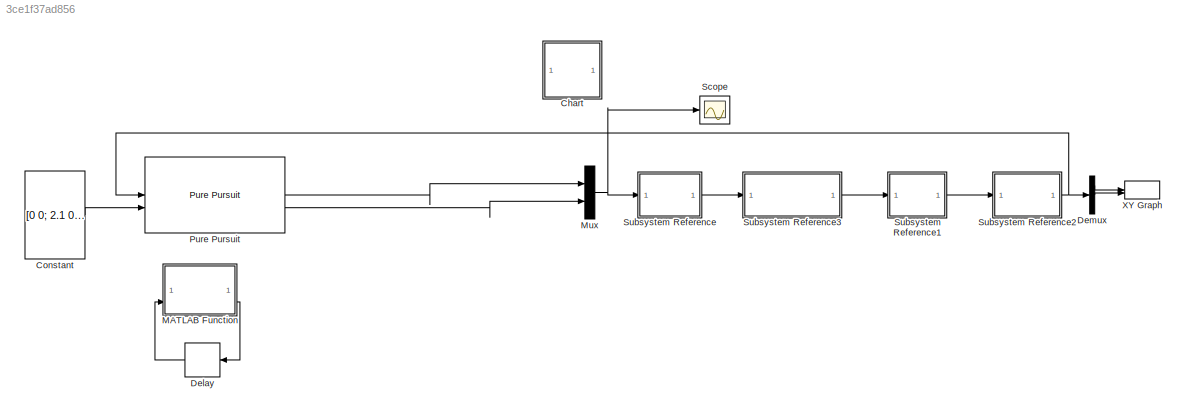
MODEL slx_3ce1f37ad856
KIND model
CONFIG AbsTol = auto
CONFIG EnableMultiTasking = on
CONFIG FixedStep = 0.01
CONFIG MaxStep = 0.01
CONFIG MinStep = auto
CONFIG RelTol = 1e-3
CONFIG SampleTimeConstraint = Unconstrained
CONFIG SolverName = FixedStepDiscrete
CONFIG StartTime = 0.0
CONFIG StopTime = 200
WORKSPACE source: mxarray member
WORKSPACE d = 1
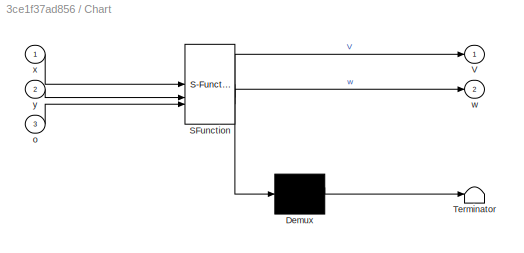
BLOCK [SubSystem] Chart
  Commented = on
  ErrorFcn = Stateflow.Translate.translate
  PermitHierarchicalResolution = ExplicitOnly
  SFBlockType = Chart
  TreatAsAtomicUnit = on
BLOCK [Demux] Chart/ Demux 
  Outputs = 1
BLOCK [S-Function] Chart/ SFunction 
  EnableBusSupport = off
  FunctionName = sf_sfun
  PortCounts = [3 3]
  SFcnIsStateOwnerBlock = off
  SFunctionDeploymentMode = off
  Tag = Stateflow S-Function 3
BLOCK [Terminator] Chart/ Terminator 
BLOCK [Outport] Chart/V
BLOCK [Inport] Chart/o
  Port = 3
BLOCK [Outport] Chart/w
  Port = 2
BLOCK [Inport] Chart/x
BLOCK [Inport] Chart/y
  Port = 2
BLOCK [Constant] Constant
  Value = [0 0; 2.1 0; 2.1 12; 3 12; 3 14; 3 14]
BLOCK [Delay] Delay
  Commented = on
  DelayLength = 1
  InputPortMap = u0
BLOCK [Demux] Demux
  Outputs = 3
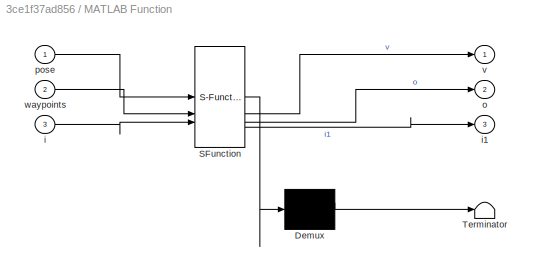
BLOCK [SubSystem] MATLAB Function
  Commented = on
  ErrorFcn = Stateflow.Translate.translate
  PermitHierarchicalResolution = ExplicitOnly
  SFBlockType = MATLAB Function
  TreatAsAtomicUnit = on
BLOCK [Demux] MATLAB Function/ Demux 
  Outputs = 1
BLOCK [S-Function] MATLAB Function/ SFunction 
  EnableBusSupport = off
  FunctionName = sf_sfun
  PortCounts = [3 4]
  SFcnIsStateOwnerBlock = off
  SFunctionDeploymentMode = off
  Tag = Stateflow S-Function 2
BLOCK [Terminator] MATLAB Function/ Terminator 
BLOCK [Inport] MATLAB Function/i
  Port = 3
BLOCK [Outport] MATLAB Function/i1
  Port = 3
BLOCK [Outport] MATLAB Function/o
  Port = 2
BLOCK [Inport] MATLAB Function/pose
BLOCK [Outport] MATLAB Function/v
BLOCK [Inport] MATLAB Function/waypoints
  Port = 2
BLOCK [Mux] Mux
  DisplayOption = bar
  Inputs = 2
BLOCK [Reference] Pure Pursuit  REF=robotalgslib/Pure Pursuit
  LibrarySourceBlock = navlib/Control Algorithms/Pure Pursuit
  SourceBlock = robotalgslib/Pure Pursuit
  SourceType = nav.slalgs.internal.PurePursuit
BLOCK [Scope] Scope
  Floating = off
  NumInputPorts = 1
  ScopeSpecificationString = Simulink.scopes.TimeScopeBlockCfg('CurrentConfiguration', extmgr.ConfigurationSet(extmgr.Configuration('Core','General UI',true),extmgr.Configuration('Core','Source UI',true),extmgr.Configuration('Sources','WiredSimulink',true,'DataLoggingVariableName','ScopeData4'),extmgr.Configuration('Visuals','Time Domain',true,'SerializedDisplays',{struct('MinYLimReal','-0.9375','MaxYLimReal','0.9375','YLabel...<+1408ch>
BLOCK [SubSystem] Subsystem Reference
  ReferencedSubsystem = Inverso
BLOCK [SubSystem] Subsystem Reference1
  ReferencedSubsystem = Directo
BLOCK [SubSystem] Subsystem Reference2
  ReferencedSubsystem = Odometria
BLOCK [SubSystem] Subsystem Reference3
  ReferencedSubsystem = PieroControladoV
BLOCK [Record] XY Graph
  CompatibilityTag = XY
  FileSettingsInternal = {"entries":[{"content":{"excelSettings":{"content":{},"type":"Streamout.ExcelSettings"}},"type":"Streamout.FileSettingStorage","uuid":""}],"packageUris":["http:\/\/schema.mathworks.com\/mf0\/streamout_blocks\/R2020a"],"version":"1.0"}
  Layout = [1 1]
  SignalsInternal = {"entries":[{"content":{"signals":[{"content":{"blockPath":[],"dimensions":[1],"domain":"","lineColor":"#fe330a","plots":[ 1 ],"port":1,"sid":[""],"signalID":1,"signalName":"Demux:1"},"type":"RecordBlkView.Signal","uuid":""},{"content":{"blockPath":[],"dimensions":[1],"domain":"","lineColor":"#22b573","plots":[ 1 ],"port":2,"sid":[""],"signalID":2,"signalName":"Demux:2"},"type":"RecordBlkView.Sign...<+160ch>
  VisualizationBindings = {"xyplotplugin":{"info":[{"series":[{"bindingParametersList":[{"parameter":"X-Axis","signalID":1,"signalName":"Demux:1"},{"parameter":"Y-Axis","signalID":2,"signalName":"Demux:2"}],"seriesID":0}],"subplotID":1}]}}
LINE Constant:1 -> Pure Pursuit:2
LINE Delay:1 -> MATLAB Function:3
LINE Demux:1 -> XY Graph:1
LINE Demux:2 -> XY Graph:2
LINE MATLAB Function:3 -> Delay:1
NET Mux:1 -> Scope:1, Subsystem Reference:1
LINE Pure Pursuit:1 -> Mux:1
LINE Pure Pursuit:2 -> Mux:2
LINE Subsystem Reference1:1 -> Subsystem Reference2:1
NET Subsystem Reference2:1 -> Demux:1, Pure Pursuit:1
LINE Subsystem Reference3:1 -> Subsystem Reference1:1
LINE Subsystem Reference:1 -> Subsystem Reference3:1
note: NET lines group one-source signal fan-out (src -> all destinations, sorted); 1:1 wires keep LINE
CHART MATLAB Function states=1 transitions=1
  STATE_LABEL 'eML_blk_kernel()'
  STATE_LABEL 'SCRIPT:\nfunction [v, o, i1] = fcn(pose, waypoints, i)\nLA=0.30;\n%if isempty (indice)\n%   persistent indice=0;\n\nv = 0.205;\ni=i+1;\ni1=0;\nx=pose(1);\ny=pose(2);\nO=pose(3);\n\nif(length(waypoints)>=i)\n    distancia=sqrt((waypoints(i,1)-x)^2 +(waypoints(i,2)-x)^2);\n    while (distancia<LA)&&(length(waypoints)<i)\n        i=i+1;\n        distancia=sqrt((waypoints(i,1)-x)^2 +(waypoints(i,2)-x)^2);\n        v=0....<+179ch>'
CHART Chart states=9 transitions=9
  STATE_LABEL 'Inicio\nw=0;\nV=0;'
  STATE_LABEL 'Estado8\nw=pi/2;\nV=0;'
  STATE_LABEL 'Estado1\nw=0;\nV=0.205;'
  STATE_LABEL 'Estado7\nw=pi/2;\nV=0.205;'
  STATE_LABEL 'Estado2\nw=pi/2;\nV=0.1;'
  STATE_LABEL 'Estado6\nw=pi/2;\nV=0.1;'
  STATE_LABEL 'Estado3\nw=pi/2;\nV=0.205;'
  STATE_LABEL 'Estado5\nw=0;\nV=0.205;'
  STATE_LABEL 'Estado4\nw=0;\nV=0.1;'
CHART  states=0 transitions=0
CHART  states=0 transitions=0
